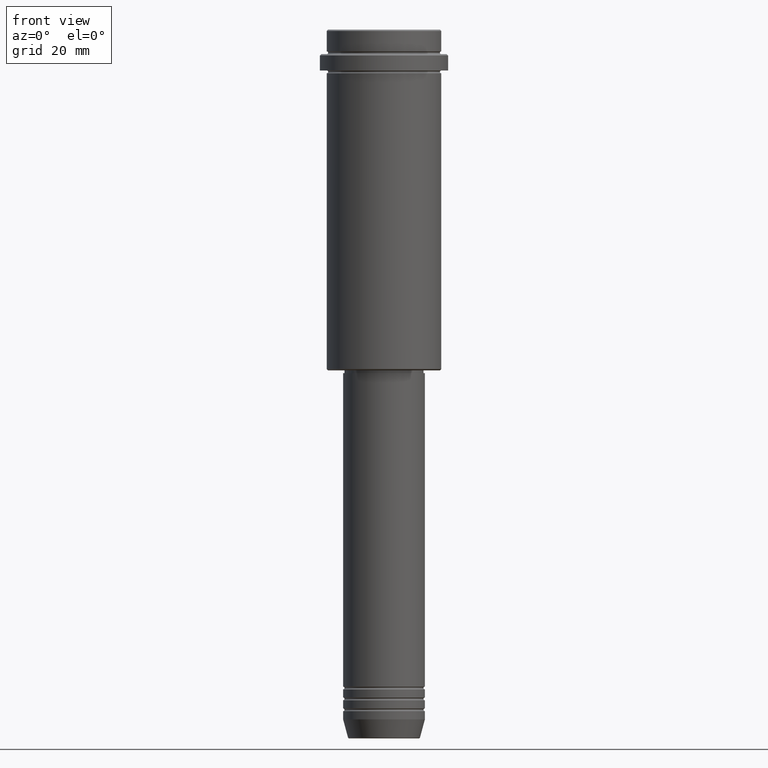
[diagram: clean part render]
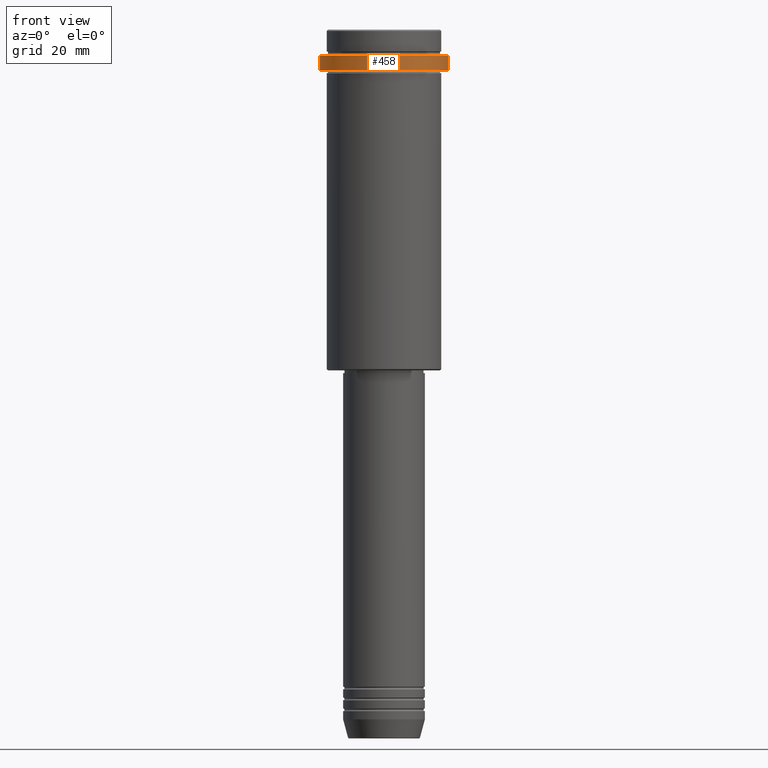
[diagram: same view with one face highlighted and labeled with its STEP entity id]
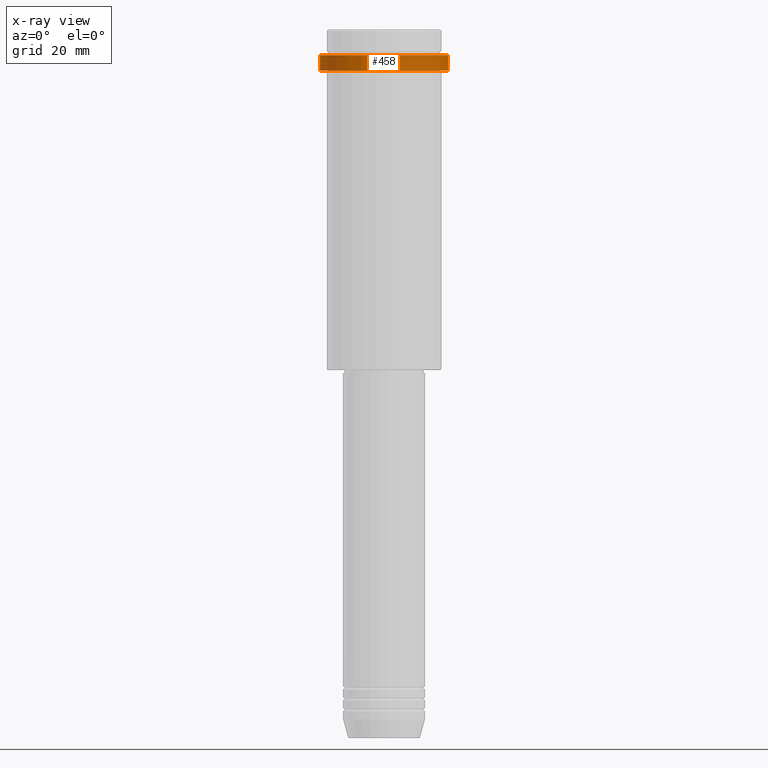
[diagram: x-ray of the same camera — body ghosted, the highlighted face saturated]
A machine part, front view. The second image highlights one B-rep face of the part: STEP entity #458.
The next image is the same camera in x-ray: the body ghosted, the highlighted face saturated — about 0% of this face is hidden behind the body in this view.
In plain terms, the highlighted cylindrical surface (partial cylindrical patch) has radius 23.5 mm, axis along (-0, -0, 1).
Its self-contained STEP definition (entity closure, byte-faithful):
#13 = AXIS2_PLACEMENT_3D ( 'NONE', #1051, #49, #144 ) ;
#49 = DIRECTION ( 'NONE',  ( 0.000000000000000000, 0.000000000000000000, -1.000000000000000000 ) ) ;
#55 = CARTESIAN_POINT ( 'NONE',  ( -23.50000000000000000, 2.877919977996280320E-15, 0.000000000000000000 ) ) ;
#58 = LINE ( 'NONE', #524, #177 ) ;
#79 = DIRECTION ( 'NONE',  ( -0.000000000000000000, -0.000000000000000000, 1.000000000000000000 ) ) ;
#114 = ORIENTED_EDGE ( 'NONE', *, *, #717, .F. ) ;
#144 = DIRECTION ( 'NONE',  ( 1.000000000000000000, 0.000000000000000000, 0.000000000000000000 ) ) ;
#177 = VECTOR ( 'NONE', #79, 1000.000000000000000 ) ;
#203 = CARTESIAN_POINT ( 'NONE',  ( 23.50000000000000355, 0.000000000000000000, -15.00000000000000178 ) ) ;
#294 = DIRECTION ( 'NONE',  ( 1.000000000000000000, 0.000000000000000000, 0.000000000000000000 ) ) ;
#307 = ORIENTED_EDGE ( 'NONE', *, *, #1114, .T. ) ;
#367 = ORIENTED_EDGE ( 'NONE', *, *, #1120, .T. ) ;
#391 = CARTESIAN_POINT ( 'NONE',  ( -23.50000000000000000, 2.877919977996280320E-15, -9.500000000000001776 ) ) ;
#393 = LINE ( 'NONE', #55, #781 ) ;
#458 = ADVANCED_FACE ( 'NONE', ( #1366 ), #1052, .T. ) ;
#524 = CARTESIAN_POINT ( 'NONE',  ( 23.50000000000000000, 0.000000000000000000, 0.000000000000000000 ) ) ;
#717 = EDGE_CURVE ( 'NONE', #782, #741, #393, .T. ) ;
#741 = VERTEX_POINT ( 'NONE', #391 ) ;
#781 = VECTOR ( 'NONE', #1269, 1000.000000000000000 ) ;
#782 = VERTEX_POINT ( 'NONE', #1089 ) ;
#836 = DIRECTION ( 'NONE',  ( -0.000000000000000000, -0.000000000000000000, 1.000000000000000000 ) ) ;
#859 = CARTESIAN_POINT ( 'NONE',  ( 0.000000000000000000, 0.000000000000000000, -15.00000000000000178 ) ) ;
#946 = EDGE_CURVE ( 'NONE', #1125, #741, #1321, .T. ) ;
#952 = AXIS2_PLACEMENT_3D ( 'NONE', #1164, #836, #1066 ) ;
#963 = ORIENTED_EDGE ( 'NONE', *, *, #946, .T. ) ;
#980 = CARTESIAN_POINT ( 'NONE',  ( 23.50000000000000000, 0.000000000000000000, -9.500000000000001776 ) ) ;
#1043 = AXIS2_PLACEMENT_3D ( 'NONE', #859, #1085, #294 ) ;
#1051 = CARTESIAN_POINT ( 'NONE',  ( 0.000000000000000000, 0.000000000000000000, -9.500000000000001776 ) ) ;
#1052 = CYLINDRICAL_SURFACE ( 'NONE', #952, 23.50000000000000000 ) ;
#1066 = DIRECTION ( 'NONE',  ( 1.000000000000000000, 0.000000000000000000, 0.000000000000000000 ) ) ;
#1085 = DIRECTION ( 'NONE',  ( -0.000000000000000000, -0.000000000000000000, 1.000000000000000000 ) ) ;
#1089 = CARTESIAN_POINT ( 'NONE',  ( -23.50000000000000711, 2.877919977996281109E-15, -15.00000000000000178 ) ) ;
#1114 = EDGE_CURVE ( 'NONE', #782, #1266, #1411, .T. ) ;
#1120 = EDGE_CURVE ( 'NONE', #1266, #1125, #58, .T. ) ;
#1125 = VERTEX_POINT ( 'NONE', #980 ) ;
#1164 = CARTESIAN_POINT ( 'NONE',  ( 0.000000000000000000, 0.000000000000000000, 0.000000000000000000 ) ) ;
#1226 = EDGE_LOOP ( 'NONE', ( #114, #307, #367, #963 ) ) ;
#1266 = VERTEX_POINT ( 'NONE', #203 ) ;
#1269 = DIRECTION ( 'NONE',  ( -0.000000000000000000, -0.000000000000000000, 1.000000000000000000 ) ) ;
#1321 = CIRCLE ( 'NONE', #13, 23.50000000000000000 ) ;
#1366 = FACE_OUTER_BOUND ( 'NONE', #1226, .T. ) ;
#1411 = CIRCLE ( 'NONE', #1043, 23.50000000000000355 ) ;